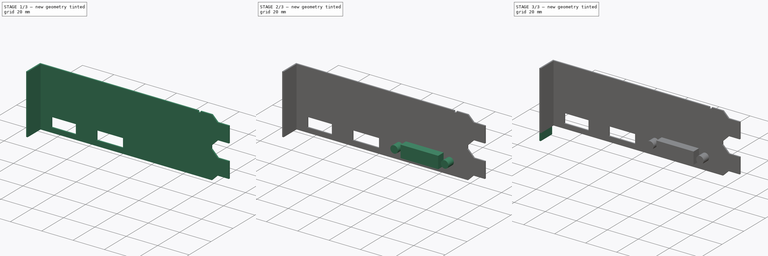
[diagram: build sequence overview — one tinted view per stage of 3, left to right]
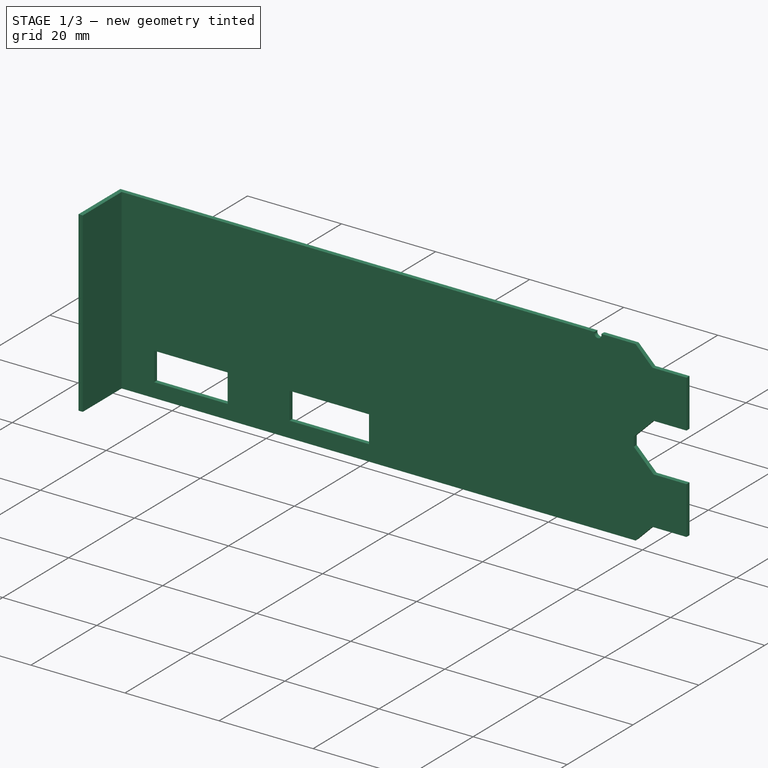
[diagram: stage 1 of 3 — iso view after this stage's code; geometry added in this stage tinted green]
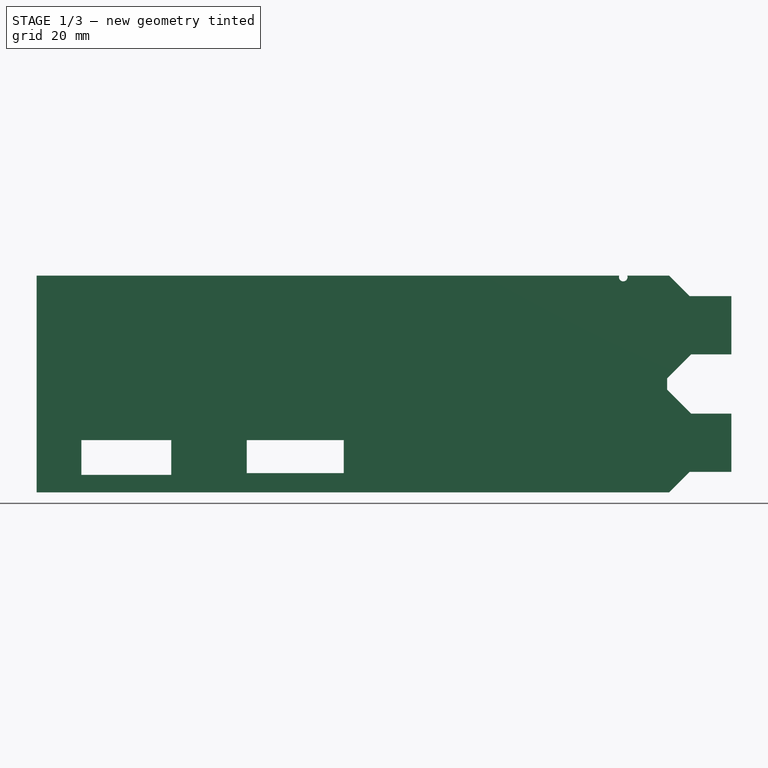
[diagram: stage 1 of 3 — front view after this stage's code; geometry added in this stage tinted green]
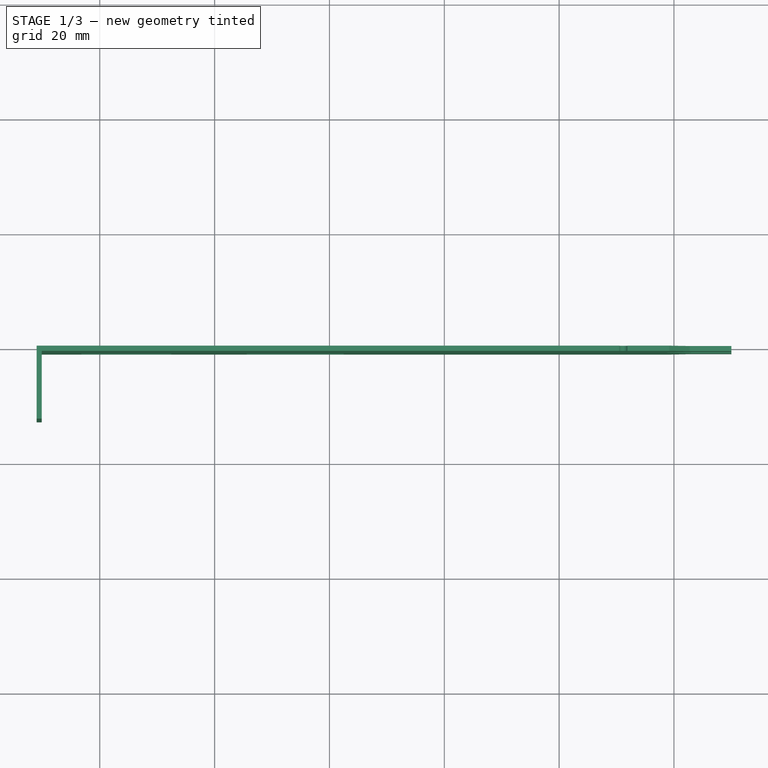
[diagram: stage 1 of 3 — top view after this stage's code; geometry added in this stage tinted green]
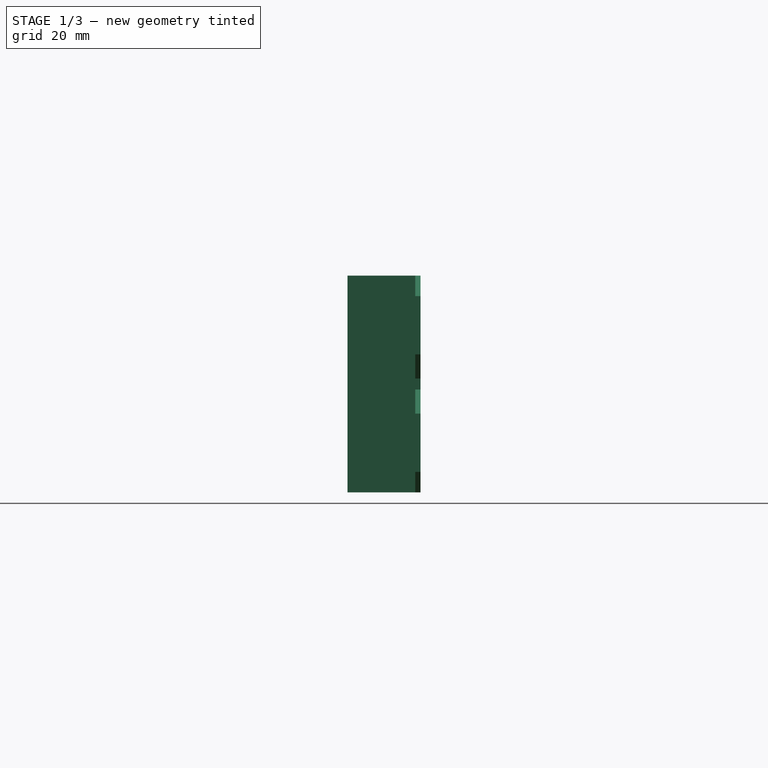
[diagram: stage 1 of 3 — right view after this stage's code; geometry added in this stage tinted green]
FCSTD DOCUMENT  (FreeCAD 0.21R33771 (Git))
Label: gpu-back
License: All rights reserved
LicenseURL: http://en.wikipedia.org/wiki/All_rights_reserved
objects: Sketcher::SketchObject×4, PartDesign::Pad×3, PartDesign::Pocket×2, PartDesign::Body×1
note: 15 computed .brp shape members not serialized (recipe doc carries the construction recipe); baked Part::Feature solids carry a one-line shape summary decoded from their .brp

FEATURE [Sketcher::SketchObject] Sketch
  FullyConstrained = true
  MapMode = 5
  Support = -> [XY_Plane]
  sketch-geometry (6):
    g0: LineSegment StartX=-31 StartY=20 StartZ=0 EndX=90 EndY=20 EndZ=0
    g1: LineSegment StartX=90 StartY=20 StartZ=0 EndX=90 EndY=19.1 EndZ=0
    g2: LineSegment StartX=90 StartY=19.1 StartZ=0 EndX=-30.1 EndY=19.1 EndZ=0
    g3: LineSegment StartX=-30.1 StartY=19.1 StartZ=0 EndX=-30.1 EndY=7.3 EndZ=0
    g4: LineSegment StartX=-30.1 StartY=7.3 StartZ=0 EndX=-31 EndY=7.3 EndZ=0
    g5: LineSegment StartX=-31 StartY=7.3 StartZ=0 EndX=-31 EndY=20 EndZ=0
  constraints (18):
    c: Horizontal(g0)
    c: Coincident(g0,g1)
    c: Vertical(g1)
    c: Coincident(g1,g2)
    c: Horizontal(g2)
    c: Coincident(g2,g3)
    c: Vertical(g3)
    c: Coincident(g3,g4)
    c: Horizontal(g4)
    c: Coincident(g4,g5)
    c: Coincident(g5,g0)
    c: Vertical(g5)
    c: DistanceY(g1,g1) = 0.9
    c: DistanceX(g4,g4) = 0.9
    c: DistanceX(g0,g0) = 121
    c: DistanceY(g5,g5) = 12.7
    c: DistanceX(g-1,g1) = 90
    c: DistanceY(g-1,g0) = 20
FEATURE [PartDesign::Pad] Pad
  Direction = (0,0,1)
  Length = 37.75
  Length2 = 10
  Profile = -> Sketch
  ReferenceAxis = -> Sketch [N_Axis]
  Type = 0
FEATURE [Sketcher::SketchObject] Sketch001
  FullyConstrained = false
  MapMode = 5
  Placement = pos=(0,19.1,0) rot=(1,0,0;1.5708rad)
  Support = -> [Pad]
  sketch-geometry (26):
    g0: LineSegment StartX=90 StartY=34.175 StartZ=0 EndX=90 EndY=24.025 EndZ=0
    g1: LineSegment StartX=90 StartY=24.025 StartZ=0 EndX=83 EndY=24.025 EndZ=0
    g2: LineSegment StartX=83 StartY=24.025 StartZ=0 EndX=78.8 EndY=19.825 EndZ=0
    g3: LineSegment StartX=78.8 StartY=17.925 StartZ=0 EndX=83 EndY=13.725 EndZ=0
    g4: LineSegment StartX=83 StartY=13.725 StartZ=0 EndX=90 EndY=13.725 EndZ=0
    g5: LineSegment StartX=90 StartY=13.725 StartZ=0 EndX=90 EndY=3.575 EndZ=0
    g6: LineSegment StartX=90 StartY=3.575 StartZ=0 EndX=82.75 EndY=3.575 EndZ=0
    g7: LineSegment StartX=82.75 StartY=3.575 StartZ=0 EndX=79.175 EndY=0 EndZ=0
    g8: LineSegment StartX=79.175 StartY=37.75 StartZ=0 EndX=82.75 EndY=34.175 EndZ=0
    g9: LineSegment StartX=82.75 StartY=34.175 StartZ=0 EndX=90 EndY=34.175 EndZ=0
    g10: GeomPoint X=88.1266 Y=12.1559 Z=0
    g11: LineSegment StartX=78.8 StartY=19.825 StartZ=0 EndX=78.8 EndY=17.925 EndZ=0
    g12: LineSegment StartX=79.175 StartY=0 StartZ=0 EndX=79.175 EndY=-11.4548 EndZ=0
    g13: LineSegment StartX=79.175 StartY=-11.4548 StartZ=0 EndX=99.7656 EndY=-11.4548 EndZ=0
    g14: LineSegment StartX=99.7656 StartY=-11.4548 StartZ=0 EndX=99.7656 EndY=41.4667 EndZ=0
    g15: LineSegment StartX=99.7656 StartY=41.4667 StartZ=0 EndX=78.8975 EndY=41.4667 EndZ=0
    g16: LineSegment StartX=78.8975 StartY=41.4667 StartZ=0 EndX=79.175 EndY=37.75 EndZ=0
    g17: Circle CenterX=71.17 CenterY=37.5 CenterZ=0 NormalX=0 NormalY=0 NormalZ=1 AngleXU=0 Radius=0.75
    g18: LineSegment StartX=5.6 StartY=9.1 StartZ=0 EndX=22.5 EndY=9.1 EndZ=0
    g19: LineSegment StartX=22.5 StartY=9.1 StartZ=0 EndX=22.5 EndY=3.35 EndZ=0
    g20: LineSegment StartX=22.5 StartY=3.35 StartZ=0 EndX=5.6 EndY=3.35 EndZ=0
    g21: LineSegment StartX=5.6 StartY=3.35 StartZ=0 EndX=5.6 EndY=9.1 EndZ=0
    g22: LineSegment StartX=-23.2 StartY=9.1 StartZ=0 EndX=-7.55 EndY=9.1 EndZ=0
    g23: LineSegment StartX=-7.55 StartY=9.1 StartZ=0 EndX=-7.55 EndY=3.05 EndZ=0
    g24: LineSegment StartX=-7.55 StartY=3.05 StartZ=0 EndX=-23.2 EndY=3.05 EndZ=0
    g25: LineSegment StartX=-23.2 StartY=3.05 StartZ=0 EndX=-23.2 EndY=9.1 EndZ=0
  constraints (71):
    c: Coincident(g0,g1)
    c: Coincident(g1,g2)
    c: Coincident(g3,g4)
    c: Horizontal(g4)
    c: Coincident(g4,g5)
    c: Coincident(g5,g6)
    c: Horizontal(g6)
    c: Coincident(g6,g7)
    c: Coincident(g8,g9)
    c: Coincident(g9,g0)
    c: Horizontal(g9)
    c: Horizontal(g1)
    c: Vertical(g0)
    c: Vertical(g5)
    c: DistanceX(g4,g0) = 0
    c: DistanceX(g-1,g5) = 90
    c: DistanceY(g0,g0) = 10.15
    c: DistanceY(g5,g5) = 10.15
    c: Angle(g2,g1) = 2.35619
    c: Angle(g4,g3) = 2.35619
    c: Angle(g9,g8) = 2.35619
    c: Angle(g7,g6) = 2.35619
    c: DistanceY(g-1,g8) = 37.75
    c: DistanceY(g7,g-1) = 0
    c: DistanceX(g6,g6) = 7.25
    c: DistanceX(g9,g9) = 7.25
    c: DistanceY(g5,g0) = 30.6
    c: Equal(g2,g3)
    c: Equal(g7,g8)
    c: DistanceX(g4,g4) = 7
    c: DistanceY(g3,g2) = 1.9
    c: Coincident(g11,g2)
    c: Coincident(g11,g3)
    c: Vertical(g11)
    c: Coincident(g12,g7)
    c: Vertical(g12)
    c: Coincident(g12,g13)
    c: Horizontal(g13)
    c: Coincident(g13,g14)
    c: Vertical(g14)
    c: Coincident(g14,g15)
    c: Horizontal(g15)
    c: Coincident(g15,g16)
    c: Coincident(g16,g8)
    c: Diameter(g17) = 1.5
    c: DistanceX(g-1,g17) = 71.17
    c: DistanceY(g-1,g17) = 37.5
    c: Coincident(g18,g19)
    c: Coincident(g19,g20)
    c: Coincident(g20,g21)
    c: Coincident(g21,g18)
    c: Horizontal(g18)
    c: Horizontal(g20)
    c: Vertical(g19)
    c: Vertical(g21)
    c: DistanceX(g18,g18) = 16.9
    c: DistanceY(g19,g19) = 5.75
    c: DistanceY(g-1,g19) = 3.35
    c: DistanceX(g-1,g18) = 22.5
    c: Coincident(g22,g23)
    c: Coincident(g23,g24)
    c: Coincident(g24,g25)
    c: Coincident(g25,g22)
    c: Horizontal(g22)
    c: Horizontal(g24)
    c: Vertical(g23)
    c: Vertical(g25)
    c: DistanceX(g22,g18) = 13.15
    c: DistanceX(g22,g22) = 15.65
    c: DistanceY(g23,g23) = 6.05
    c: DistanceY(g18,g22) = 0
FEATURE [PartDesign::Pocket] Pocket
  BaseFeature = -> Pad
  Direction = (0,1,-2e-16)
  Length = 5
  Length2 = 5
  Profile = -> Sketch001
  ReferenceAxis = -> Sketch001 [N_Axis]
  Type = 0
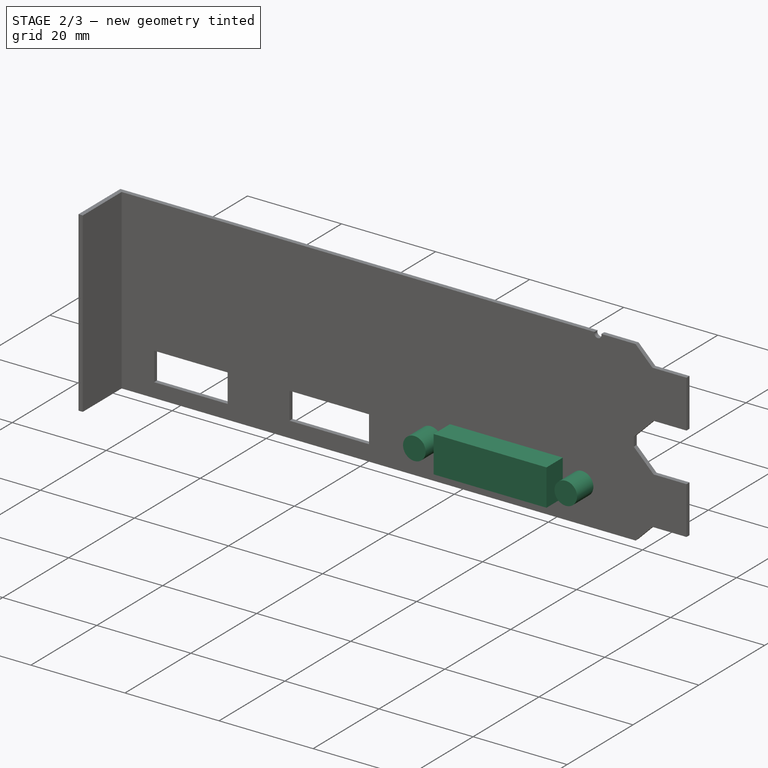
[diagram: stage 2 of 3 — iso view after this stage's code; geometry added in this stage tinted green]
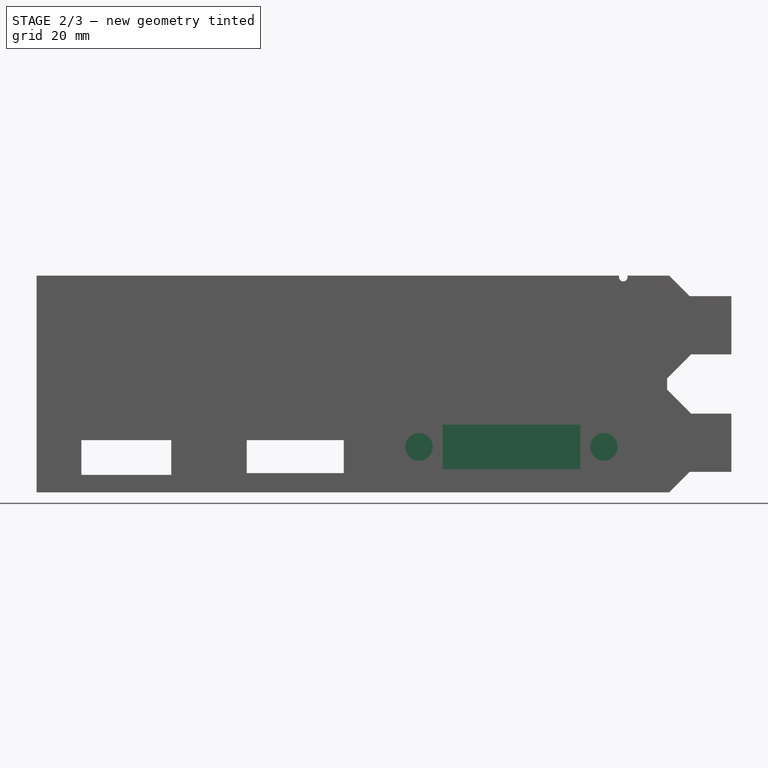
[diagram: stage 2 of 3 — front view after this stage's code; geometry added in this stage tinted green]
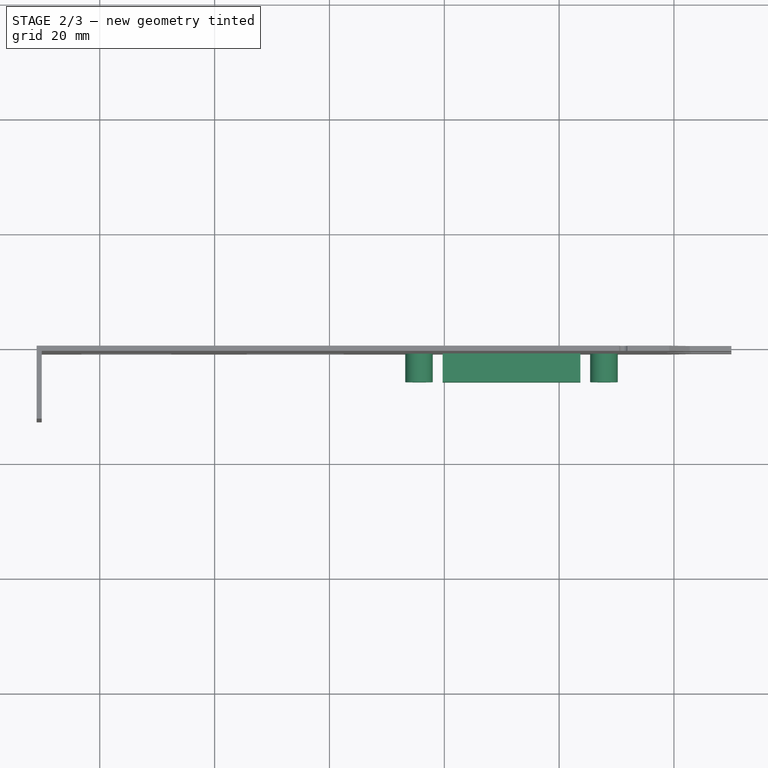
[diagram: stage 2 of 3 — top view after this stage's code; geometry added in this stage tinted green]
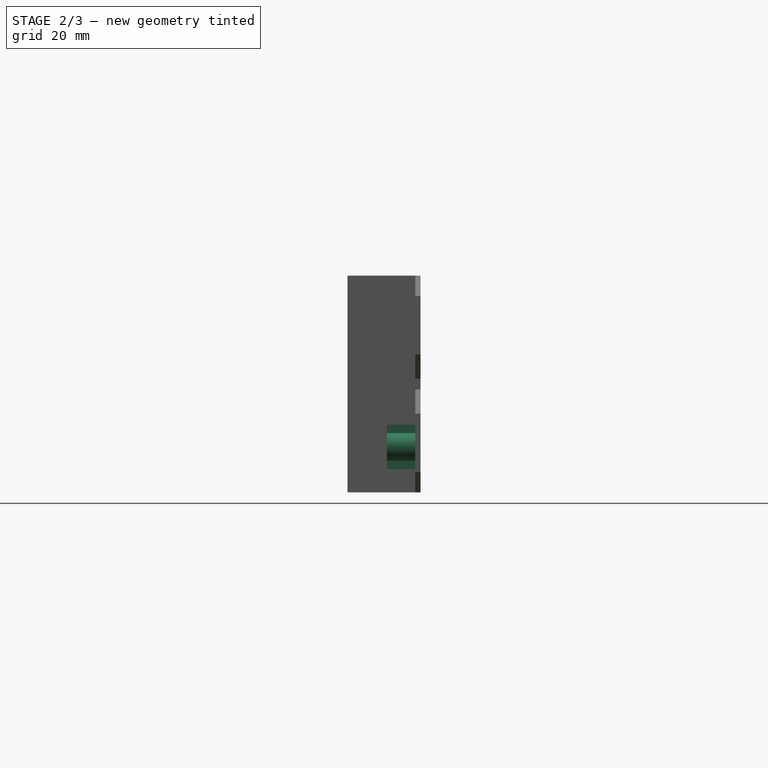
[diagram: stage 2 of 3 — right view after this stage's code; geometry added in this stage tinted green]
FEATURE [Sketcher::SketchObject] Sketch003
  FullyConstrained = true
  MapMode = 5
  Placement = pos=(0,19.1,0) rot=(1,0,0;1.5708rad)
  sketch-geometry (9):
    g0: LineSegment StartX=39.7 StartY=11.8 StartZ=0 EndX=63.7 EndY=11.8 EndZ=0
    g1: LineSegment StartX=63.7 StartY=11.8 StartZ=0 EndX=63.7 EndY=4.05 EndZ=0
    g2: LineSegment StartX=63.7 StartY=4.05 StartZ=0 EndX=39.7 EndY=4.05 EndZ=0
    g3: LineSegment StartX=39.7 StartY=4.05 StartZ=0 EndX=39.7 EndY=11.8 EndZ=0
    g4: Circle CenterX=67.8 CenterY=7.925 CenterZ=0 NormalX=0 NormalY=0 NormalZ=1 AngleXU=0 Radius=2.4
    g5: Circle CenterX=35.6 CenterY=7.925 CenterZ=0 NormalX=0 NormalY=0 NormalZ=1 AngleXU=0 Radius=2.4
    g6: LineSegment StartX=35.6 StartY=7.925 StartZ=0 EndX=67.8 EndY=7.925 EndZ=0
    g7: LineSegment StartX=35.6 StartY=7.925 StartZ=0 EndX=39.7 EndY=11.8 EndZ=0
    g8: LineSegment StartX=63.7 StartY=11.8 StartZ=0 EndX=67.8 EndY=7.925 EndZ=0
  constraints (24):
    c: Coincident(g0,g1)
    c: Coincident(g1,g2)
    c: Coincident(g2,g3)
    c: Coincident(g3,g0)
    c: Horizontal(g0)
    c: Horizontal(g2)
    c: Vertical(g1)
    c: Vertical(g3)
    c: DistanceX(g0,g0) = 24
    c: DistanceY(g1,g1) = 7.75
    c: DistanceX(g-1,g2) = 39.7
    c: DistanceY(g-1,g0) = 11.8
    c: Coincident(g6,g5)
    c: Coincident(g6,g4)
    c: Horizontal(g6)
    c: Coincident(g7,g5)
    c: Coincident(g7,g0)
    c: Coincident(g8,g0)
    c: Coincident(g8,g4)
    c: Equal(g7,g8)
    c: DistanceX(g5,g0) = 4.1
    c: Diameter(g5) = 4.8
    c: Diameter(g4) = 4.8
    c: DistanceY(g0,g5) = -3.875
FEATURE [PartDesign::Pad] Pad001
  BaseFeature = -> Pocket
  Direction = (0,-1,2e-16)
  Length = 4.95
  Length2 = 10
  Profile = -> Sketch003
  ReferenceAxis = -> Sketch003 [N_Axis]
  Type = 0
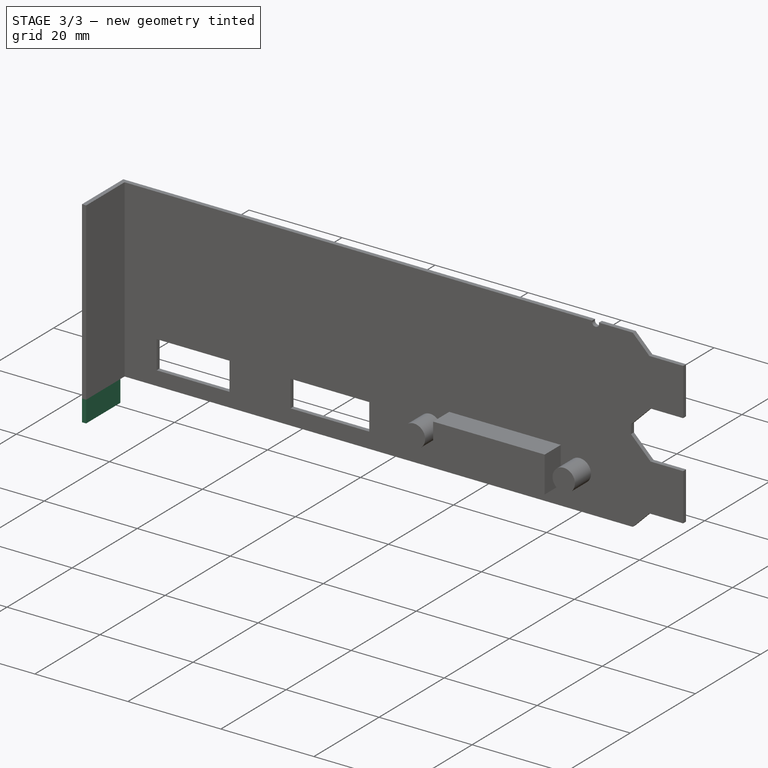
[diagram: stage 3 of 3 — iso view after this stage's code; geometry added in this stage tinted green]
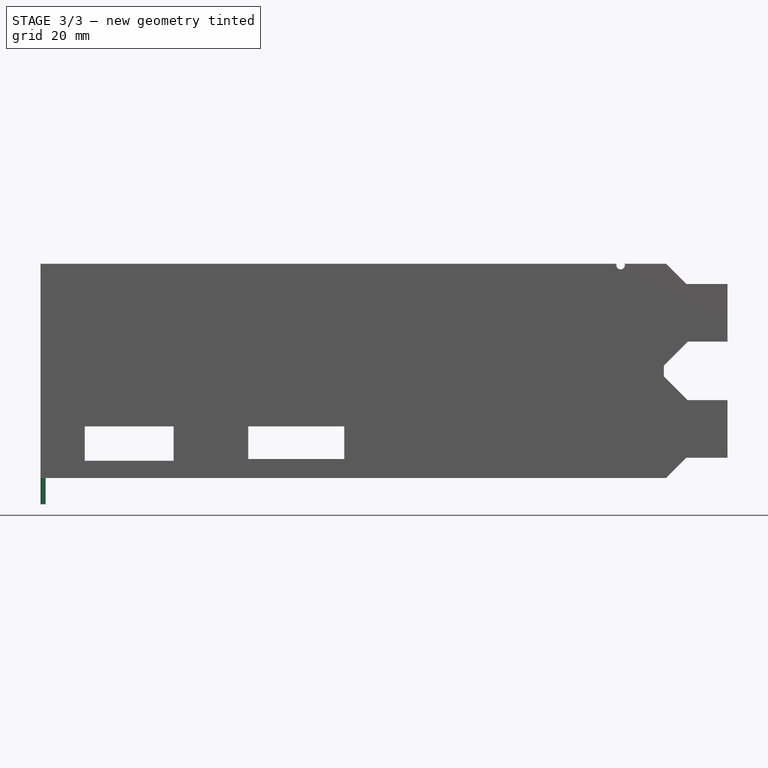
[diagram: stage 3 of 3 — front view after this stage's code; geometry added in this stage tinted green]
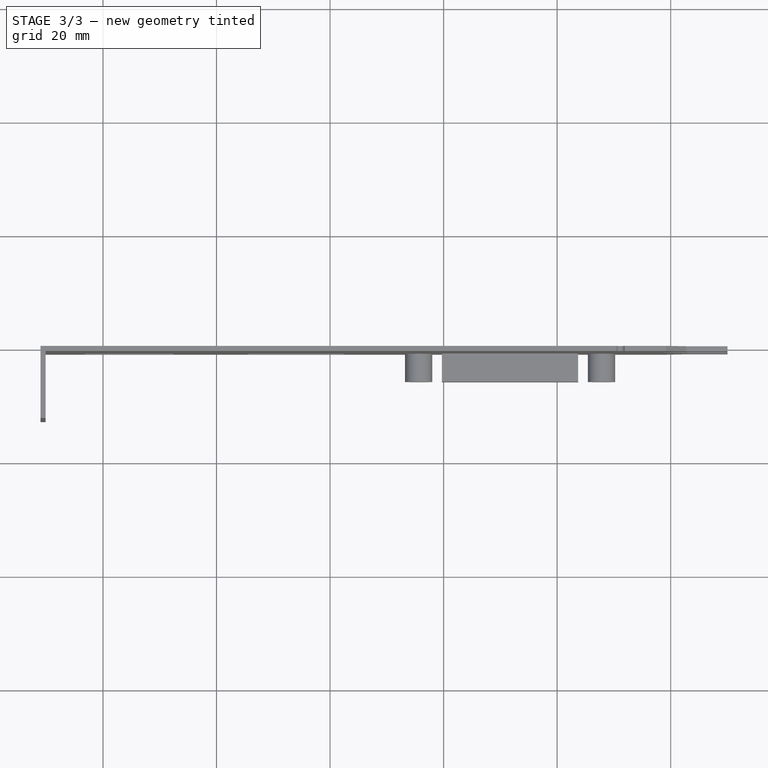
[diagram: stage 3 of 3 — top view after this stage's code; geometry added in this stage tinted green]
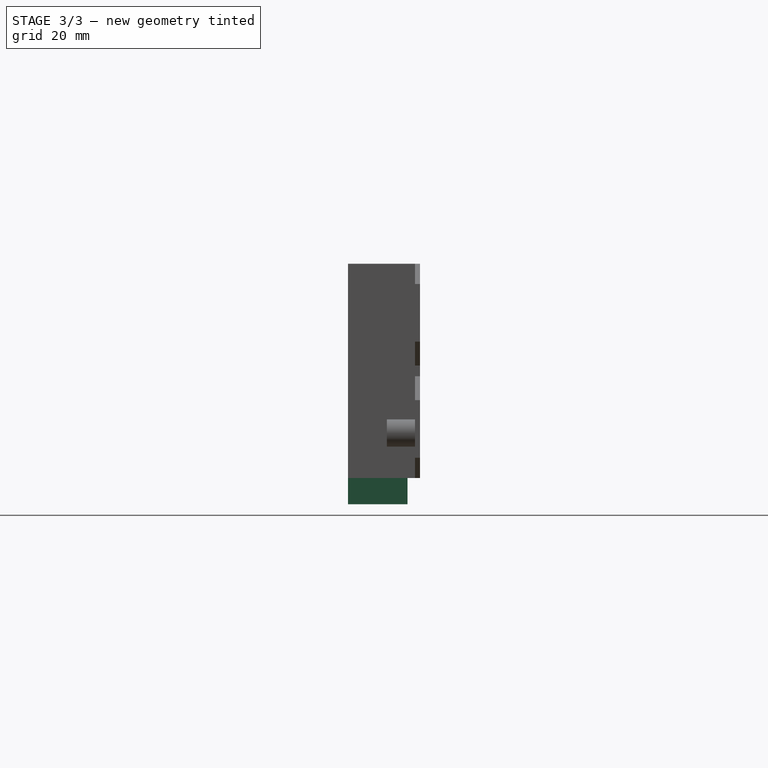
[diagram: stage 3 of 3 — right view after this stage's code; geometry added in this stage tinted green]
FEATURE [PartDesign::Pocket] Pocket001
  BaseFeature = -> Pad001
  Direction = (0,1,-2e-16)
  Length = 4.9
  Length2 = 5
  Profile = -> Sketch001
  ReferenceAxis = -> Sketch001 [N_Axis]
  Type = 0
FEATURE [Sketcher::SketchObject] Sketch004
  FullyConstrained = true
  MapMode = 5
  Placement = pos=(0,0,0) rot=(1,0,0;3.14159rad)
  Support = -> [Pocket001]
  sketch-geometry (4):
    g0: LineSegment StartX=-31 StartY=-7.3 StartZ=0 EndX=-30.1 EndY=-7.3 EndZ=0
    g1: LineSegment StartX=-30.1 StartY=-7.3 StartZ=0 EndX=-30.1 EndY=-17.8 EndZ=0
    g2: LineSegment StartX=-30.1 StartY=-17.8 StartZ=0 EndX=-31 EndY=-17.8 EndZ=0
    g3: LineSegment StartX=-31 StartY=-17.8 StartZ=0 EndX=-31 EndY=-7.3 EndZ=0
  constraints (12):
    c: Coincident(g0,g1)
    c: Coincident(g1,g2)
    c: Coincident(g2,g3)
    c: Coincident(g3,g0)
    c: Horizontal(g0)
    c: Horizontal(g2)
    c: Vertical(g1)
    c: Vertical(g3)
    c: DistanceY(g1,g0) = 10.5
    c: DistanceX(g0,g0) = 0.9
    c: DistanceX(g1,g-1) = 30.1
    c: DistanceY(g0,g-1) = 7.3
FEATURE [PartDesign::Pad] Pad002
  BaseFeature = -> Pocket001
  Direction = (0,0,-1)
  Length = 4.62
  Length2 = 10
  Profile = -> Sketch004
  ReferenceAxis = -> Sketch004 [N_Axis]
  Type = 0
FEATURE [PartDesign::Body] Body  label="实体"
  Group = -> [Sketch,Pad,Sketch001,Pocket,Sketch003,Pad001,Pocket001,Sketch004,Pad002]
  Origin = -> Origin
  Tip = -> Pad002
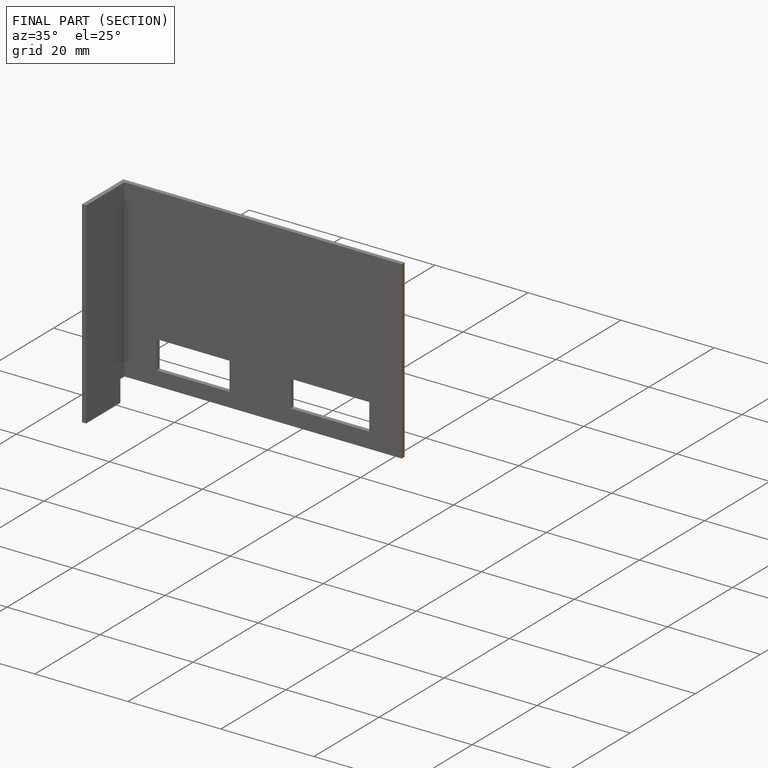
[diagram: finished part — half-section view (interior)]
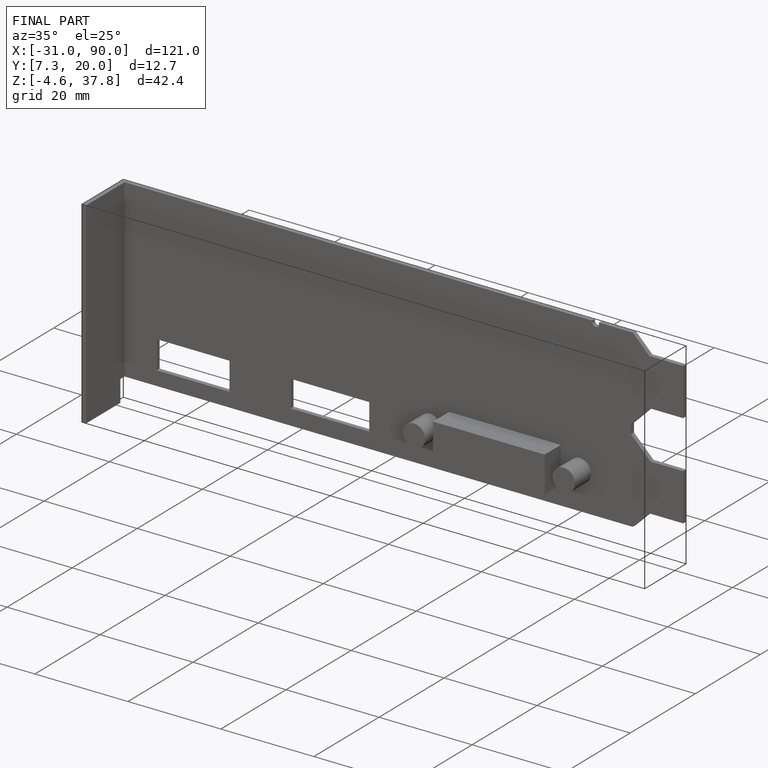
[diagram: finished part — iso view with bounding-box wireframe]
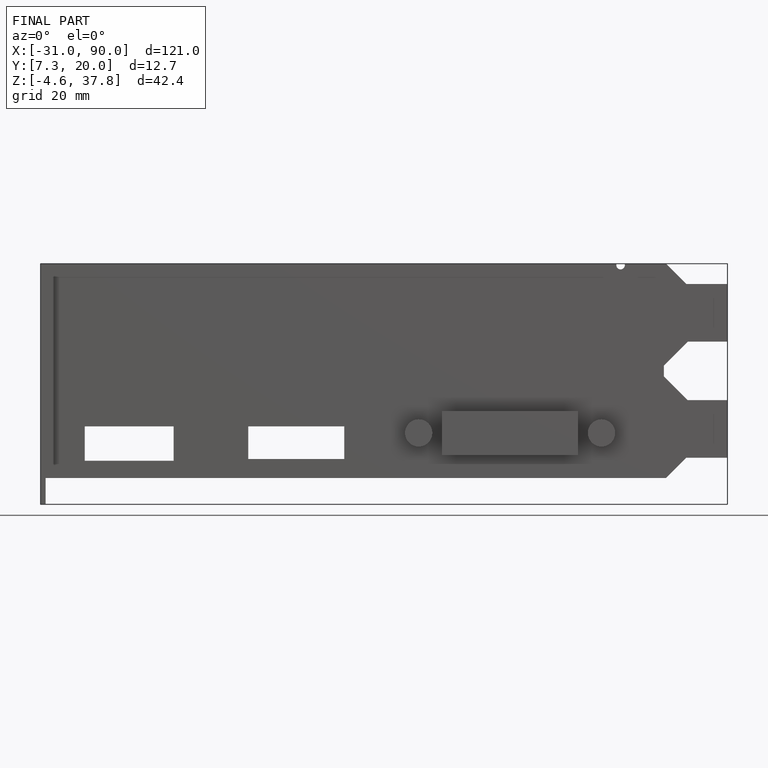
[diagram: finished part — front view with bounding-box wireframe]
